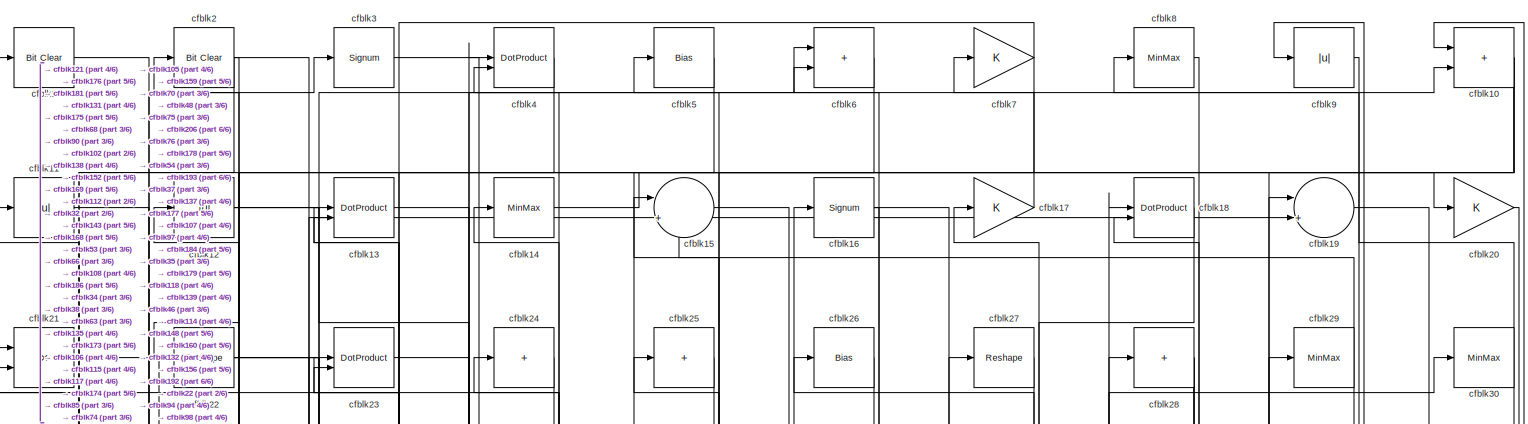
[diagram: root canvas - part 1/6, full width, top band]
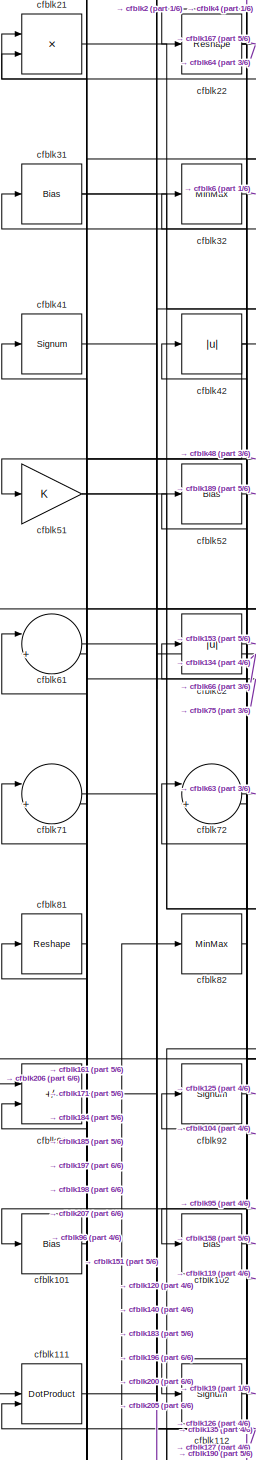
[diagram: root canvas - part 2/6, middle left region]
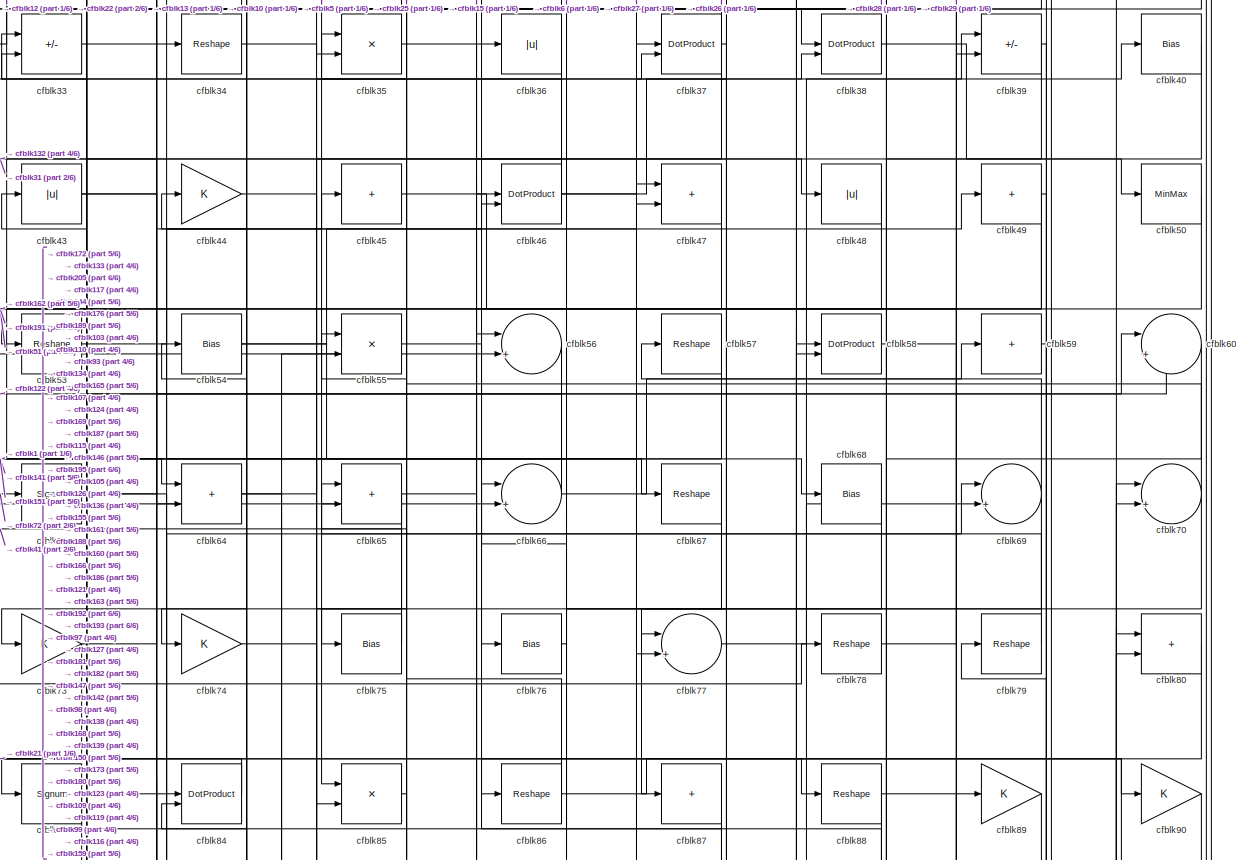
[diagram: root canvas - part 3/6, full width, top band]
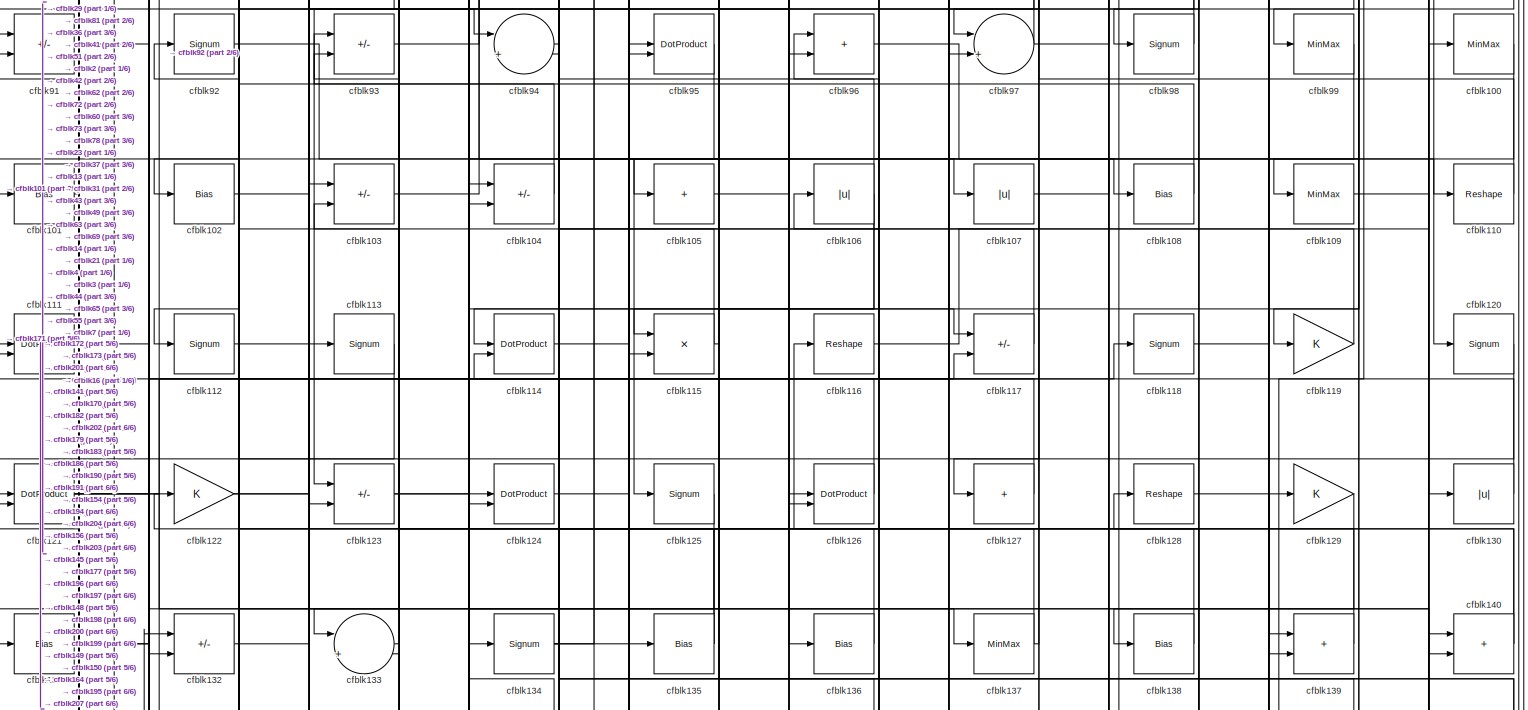
[diagram: root canvas - part 4/6, full width, middle band]
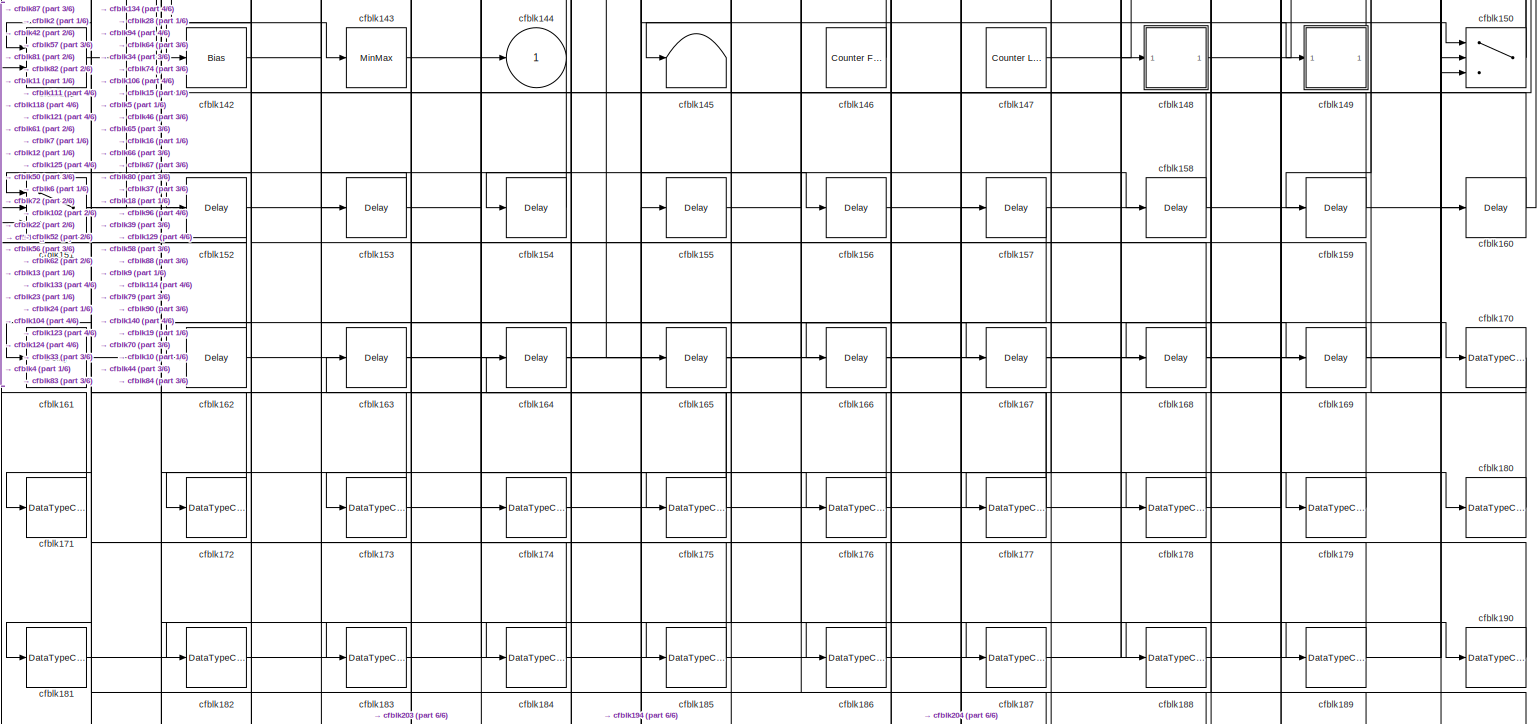
[diagram: root canvas - part 5/6, full width, bottom band]
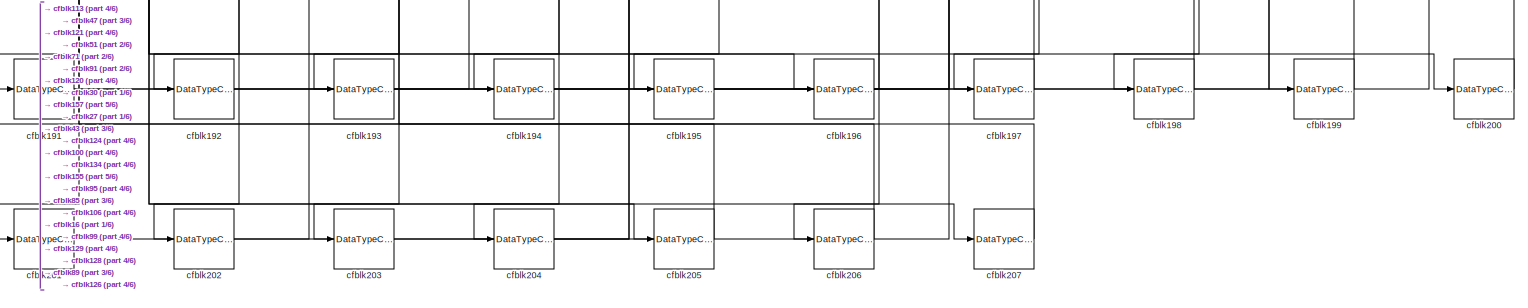
[diagram: root canvas - part 6/6, full width, bottom band]
MODEL slx_fe7b9c9af1c7
KIND model
CONFIG AbsTol = auto
CONFIG EnableMultiTasking = off
CONFIG FixedStep = auto
CONFIG MaxStep = auto
CONFIG MinStep = auto
CONFIG RelTol = 1e-3
CONFIG SampleTimeConstraint = Unconstrained
CONFIG SolverName = VariableStepAuto
CONFIG StartTime = 0.0
CONFIG StopTime = 10.0
BLOCK [Reference] cfblk1  REF=simulink/Logic and Bit
Operations/Bit Clear
  LibrarySourceBlock = hdlsllib/Logic and Bit\nOperations/Bit Clear
  SourceBlock = simulink/Logic and Bit\nOperations/Bit Clear
  SourceType = Bit Clear
BLOCK [Sum] cfblk10
  IconShape = rectangular
BLOCK [MinMax] cfblk100
BLOCK [Bias] cfblk101
  Bias = 0.0
  SaturateOnIntegerOverflow = off
BLOCK [Bias] cfblk102
  Bias = 0.0
  SaturateOnIntegerOverflow = off
BLOCK [Sum] cfblk103
  IconShape = rectangular
  Inputs = +-
BLOCK [Sum] cfblk104
  IconShape = rectangular
  Inputs = +-
BLOCK [Sum] cfblk105
  IconShape = rectangular
  Inputs = +
BLOCK [Abs] cfblk106
  SaturateOnIntegerOverflow = off
BLOCK [Abs] cfblk107
  SaturateOnIntegerOverflow = off
BLOCK [Bias] cfblk108
  Bias = 0.0
  SaturateOnIntegerOverflow = off
BLOCK [MinMax] cfblk109
BLOCK [Abs] cfblk11
  SaturateOnIntegerOverflow = off
BLOCK [Reshape] cfblk110
BLOCK [DotProduct] cfblk111
  OutDataTypeStr = Inherit: Inherit via internal rule
BLOCK [Signum] cfblk112
BLOCK [Signum] cfblk113
BLOCK [DotProduct] cfblk114
  OutDataTypeStr = Inherit: Inherit via internal rule
BLOCK [Product] cfblk115
  Inputs = */
  RndMeth = Zero
  SaturateOnIntegerOverflow = on
BLOCK [Reshape] cfblk116
BLOCK [Sum] cfblk117
  IconShape = rectangular
  Inputs = +-
BLOCK [Signum] cfblk118
BLOCK [Gain] cfblk119
BLOCK [Abs] cfblk12
  SaturateOnIntegerOverflow = off
BLOCK [Signum] cfblk120
BLOCK [DotProduct] cfblk121
  OutDataTypeStr = Inherit: Inherit via internal rule
BLOCK [Gain] cfblk122
BLOCK [Sum] cfblk123
  IconShape = rectangular
  Inputs = +-
BLOCK [DotProduct] cfblk124
  OutDataTypeStr = Inherit: Inherit via internal rule
BLOCK [Signum] cfblk125
BLOCK [DotProduct] cfblk126
  OutDataTypeStr = Inherit: Inherit via internal rule
BLOCK [Sum] cfblk127
  IconShape = rectangular
  Inputs = +
BLOCK [Reshape] cfblk128
BLOCK [Gain] cfblk129
BLOCK [DotProduct] cfblk13
  OutDataTypeStr = Inherit: Inherit via internal rule
BLOCK [Abs] cfblk130
  SaturateOnIntegerOverflow = off
BLOCK [Bias] cfblk131
  Bias = 0.0
  SaturateOnIntegerOverflow = off
BLOCK [Sum] cfblk132
  IconShape = rectangular
  Inputs = +-
BLOCK [Sum] cfblk133
  Inputs = |++
BLOCK [Signum] cfblk134
BLOCK [Bias] cfblk135
  Bias = 0.0
  SaturateOnIntegerOverflow = off
BLOCK [Bias] cfblk136
  Bias = 0.0
  SaturateOnIntegerOverflow = off
BLOCK [MinMax] cfblk137
BLOCK [Bias] cfblk138
  Bias = 0.0
  SaturateOnIntegerOverflow = off
BLOCK [Sum] cfblk139
  IconShape = rectangular
BLOCK [MinMax] cfblk14
BLOCK [Sum] cfblk140
  IconShape = rectangular
BLOCK [Product] cfblk141
  Inputs = */
  RndMeth = Zero
  SaturateOnIntegerOverflow = on
BLOCK [Bias] cfblk142
  Bias = 0.0
  SaturateOnIntegerOverflow = off
BLOCK [MinMax] cfblk143
BLOCK [Outport] cfblk144
  VectorParamsAs1DForOutWhenUnconnected = off
BLOCK [Terminator] cfblk145
BLOCK [Reference] cfblk146  REF=hdlsllib/Sources/Counter
Free-Running
  SourceBlock = hdlsllib/Sources/Counter\nFree-Running
  SourceType = Counter Free-Running
BLOCK [Reference] cfblk147  REF=hdlsllib/Sources/Counter
Limited
  SourceBlock = hdlsllib/Sources/Counter\nLimited
  SourceType = Counter Limited
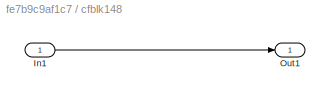
BLOCK [SubSystem] cfblk148
  LibrarySourceBlock = hdlsllib/Ports &\nSubsystems/Subsystem
BLOCK [Inport] cfblk148/In1
BLOCK [Outport] cfblk148/Out1
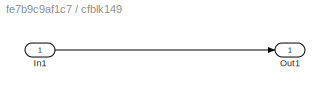
BLOCK [SubSystem] cfblk149
  LibrarySourceBlock = hdlsllib/Ports &\nSubsystems/Subsystem
BLOCK [Inport] cfblk149/In1
BLOCK [Outport] cfblk149/Out1
BLOCK [Sum] cfblk15
  Inputs = |++
BLOCK [Switch] cfblk150
  InputSameDT = off
  SaturateOnIntegerOverflow = off
BLOCK [Switch] cfblk151
  InputSameDT = off
  SaturateOnIntegerOverflow = off
BLOCK [Delay] cfblk152
  InputPortMap = u0
  SampleTime = 1
BLOCK [Delay] cfblk153
  InputPortMap = u0
  SampleTime = 1
BLOCK [Delay] cfblk154
  InputPortMap = u0
  SampleTime = 1
BLOCK [Delay] cfblk155
  InputPortMap = u0
  SampleTime = 1
BLOCK [Delay] cfblk156
  InputPortMap = u0
  SampleTime = 1
BLOCK [Delay] cfblk157
  InputPortMap = u0
  SampleTime = 1
BLOCK [Delay] cfblk158
  InputPortMap = u0
  SampleTime = 1
BLOCK [Delay] cfblk159
  InputPortMap = u0
  SampleTime = 1
BLOCK [Signum] cfblk16
BLOCK [Delay] cfblk160
  InputPortMap = u0
  SampleTime = 1
BLOCK [Delay] cfblk161
  InputPortMap = u0
  SampleTime = 1
BLOCK [Delay] cfblk162
  InputPortMap = u0
  SampleTime = 1
BLOCK [Delay] cfblk163
  InputPortMap = u0
  SampleTime = 1
BLOCK [Delay] cfblk164
  InputPortMap = u0
  SampleTime = 1
BLOCK [Delay] cfblk165
  InputPortMap = u0
  SampleTime = 1
BLOCK [Delay] cfblk166
  InputPortMap = u0
  SampleTime = 1
BLOCK [Delay] cfblk167
  InputPortMap = u0
  SampleTime = 1
BLOCK [Delay] cfblk168
  InputPortMap = u0
  SampleTime = 1
BLOCK [Delay] cfblk169
  InputPortMap = u0
  SampleTime = 1
BLOCK [Gain] cfblk17
BLOCK [DataTypeConversion] cfblk170
  OutDataTypeStr = uint8
  RndMeth = Floor
  SaturateOnIntegerOverflow = off
BLOCK [DataTypeConversion] cfblk171
  OutDataTypeStr = uint8
  RndMeth = Floor
  SaturateOnIntegerOverflow = off
BLOCK [DataTypeConversion] cfblk172
  OutDataTypeStr = uint8
  RndMeth = Floor
  SaturateOnIntegerOverflow = off
BLOCK [DataTypeConversion] cfblk173
  RndMeth = Floor
  SaturateOnIntegerOverflow = off
BLOCK [DataTypeConversion] cfblk174
  OutDataTypeStr = uint8
  RndMeth = Floor
  SaturateOnIntegerOverflow = off
BLOCK [DataTypeConversion] cfblk175
  RndMeth = Floor
  SaturateOnIntegerOverflow = off
BLOCK [DataTypeConversion] cfblk176
  OutDataTypeStr = uint8
  RndMeth = Floor
  SaturateOnIntegerOverflow = off
BLOCK [DataTypeConversion] cfblk177
  RndMeth = Floor
  SaturateOnIntegerOverflow = off
BLOCK [DataTypeConversion] cfblk178
  OutDataTypeStr = uint8
  RndMeth = Floor
  SaturateOnIntegerOverflow = off
BLOCK [DataTypeConversion] cfblk179
  OutDataTypeStr = uint8
  RndMeth = Floor
  SaturateOnIntegerOverflow = off
BLOCK [DotProduct] cfblk18
  OutDataTypeStr = Inherit: Inherit via internal rule
BLOCK [DataTypeConversion] cfblk180
  OutDataTypeStr = uint8
  RndMeth = Floor
  SaturateOnIntegerOverflow = off
BLOCK [DataTypeConversion] cfblk181
  OutDataTypeStr = uint8
  RndMeth = Floor
  SaturateOnIntegerOverflow = off
BLOCK [DataTypeConversion] cfblk182
  OutDataTypeStr = uint8
  RndMeth = Floor
  SaturateOnIntegerOverflow = off
BLOCK [DataTypeConversion] cfblk183
  OutDataTypeStr = uint8
  RndMeth = Floor
  SaturateOnIntegerOverflow = off
BLOCK [DataTypeConversion] cfblk184
  OutDataTypeStr = uint8
  RndMeth = Floor
  SaturateOnIntegerOverflow = off
BLOCK [DataTypeConversion] cfblk185
  OutDataTypeStr = uint8
  RndMeth = Floor
  SaturateOnIntegerOverflow = off
BLOCK [DataTypeConversion] cfblk186
  RndMeth = Floor
  SaturateOnIntegerOverflow = off
BLOCK [DataTypeConversion] cfblk187
  OutDataTypeStr = uint8
  RndMeth = Floor
  SaturateOnIntegerOverflow = off
BLOCK [DataTypeConversion] cfblk188
  OutDataTypeStr = uint8
  RndMeth = Floor
  SaturateOnIntegerOverflow = off
BLOCK [DataTypeConversion] cfblk189
  OutDataTypeStr = uint8
  RndMeth = Floor
  SaturateOnIntegerOverflow = off
BLOCK [Sum] cfblk19
  Inputs = |++
BLOCK [DataTypeConversion] cfblk190
  OutDataTypeStr = uint8
  RndMeth = Floor
  SaturateOnIntegerOverflow = off
BLOCK [DataTypeConversion] cfblk191
  RndMeth = Floor
  SaturateOnIntegerOverflow = off
BLOCK [DataTypeConversion] cfblk192
  OutDataTypeStr = uint8
  RndMeth = Floor
  SaturateOnIntegerOverflow = off
BLOCK [DataTypeConversion] cfblk193
  OutDataTypeStr = uint8
  RndMeth = Floor
  SaturateOnIntegerOverflow = off
BLOCK [DataTypeConversion] cfblk194
  OutDataTypeStr = uint8
  RndMeth = Floor
  SaturateOnIntegerOverflow = off
BLOCK [DataTypeConversion] cfblk195
  OutDataTypeStr = uint8
  RndMeth = Floor
  SaturateOnIntegerOverflow = off
BLOCK [DataTypeConversion] cfblk196
  OutDataTypeStr = uint8
  RndMeth = Floor
  SaturateOnIntegerOverflow = off
BLOCK [DataTypeConversion] cfblk197
  OutDataTypeStr = uint8
  RndMeth = Floor
  SaturateOnIntegerOverflow = off
BLOCK [DataTypeConversion] cfblk198
  OutDataTypeStr = uint8
  RndMeth = Floor
  SaturateOnIntegerOverflow = off
BLOCK [DataTypeConversion] cfblk199
  OutDataTypeStr = uint8
  RndMeth = Floor
  SaturateOnIntegerOverflow = off
BLOCK [Reference] cfblk2  REF=simulink/Logic and Bit
Operations/Bit Clear
  LibrarySourceBlock = hdlsllib/Logic and Bit\nOperations/Bit Clear
  SourceBlock = simulink/Logic and Bit\nOperations/Bit Clear
  SourceType = Bit Clear
BLOCK [Gain] cfblk20
BLOCK [DataTypeConversion] cfblk200
  OutDataTypeStr = uint8
  RndMeth = Floor
  SaturateOnIntegerOverflow = off
BLOCK [DataTypeConversion] cfblk201
  OutDataTypeStr = uint8
  RndMeth = Floor
  SaturateOnIntegerOverflow = off
BLOCK [DataTypeConversion] cfblk202
  OutDataTypeStr = uint8
  RndMeth = Floor
  SaturateOnIntegerOverflow = off
BLOCK [DataTypeConversion] cfblk203
  OutDataTypeStr = uint8
  RndMeth = Floor
  SaturateOnIntegerOverflow = off
BLOCK [DataTypeConversion] cfblk204
  OutDataTypeStr = uint8
  RndMeth = Floor
  SaturateOnIntegerOverflow = off
BLOCK [DataTypeConversion] cfblk205
  OutDataTypeStr = uint8
  RndMeth = Floor
  SaturateOnIntegerOverflow = off
BLOCK [DataTypeConversion] cfblk206
  OutDataTypeStr = uint8
  RndMeth = Floor
  SaturateOnIntegerOverflow = off
BLOCK [DataTypeConversion] cfblk207
  OutDataTypeStr = uint8
  RndMeth = Floor
  SaturateOnIntegerOverflow = off
BLOCK [Product] cfblk21
  Inputs = */
  RndMeth = Zero
  SaturateOnIntegerOverflow = on
BLOCK [Reshape] cfblk22
BLOCK [DotProduct] cfblk23
  OutDataTypeStr = Inherit: Inherit via internal rule
BLOCK [Sum] cfblk24
  IconShape = rectangular
  Inputs = +
BLOCK [Sum] cfblk25
  IconShape = rectangular
  Inputs = +
BLOCK [Bias] cfblk26
  Bias = 0.0
  SaturateOnIntegerOverflow = off
BLOCK [Reshape] cfblk27
BLOCK [Sum] cfblk28
  IconShape = rectangular
  Inputs = +
BLOCK [MinMax] cfblk29
BLOCK [Signum] cfblk3
BLOCK [MinMax] cfblk30
BLOCK [Bias] cfblk31
  Bias = 0.0
  SaturateOnIntegerOverflow = off
BLOCK [MinMax] cfblk32
BLOCK [Sum] cfblk33
  IconShape = rectangular
  Inputs = +-
BLOCK [Reshape] cfblk34
BLOCK [Product] cfblk35
  Inputs = */
  RndMeth = Zero
  SaturateOnIntegerOverflow = on
BLOCK [Abs] cfblk36
  SaturateOnIntegerOverflow = off
BLOCK [DotProduct] cfblk37
  OutDataTypeStr = Inherit: Inherit via internal rule
BLOCK [DotProduct] cfblk38
  OutDataTypeStr = Inherit: Inherit via internal rule
BLOCK [Sum] cfblk39
  IconShape = rectangular
  Inputs = +-
BLOCK [DotProduct] cfblk4
  OutDataTypeStr = Inherit: Inherit via internal rule
BLOCK [Bias] cfblk40
  Bias = 0.0
  SaturateOnIntegerOverflow = off
BLOCK [Signum] cfblk41
BLOCK [Abs] cfblk42
  SaturateOnIntegerOverflow = off
BLOCK [Abs] cfblk43
  SaturateOnIntegerOverflow = off
BLOCK [Gain] cfblk44
BLOCK [Sum] cfblk45
  IconShape = rectangular
  Inputs = +
BLOCK [DotProduct] cfblk46
  OutDataTypeStr = Inherit: Inherit via internal rule
BLOCK [Sum] cfblk47
  IconShape = rectangular
BLOCK [Abs] cfblk48
  SaturateOnIntegerOverflow = off
BLOCK [Sum] cfblk49
  IconShape = rectangular
  Inputs = +
BLOCK [Bias] cfblk5
  Bias = 0.0
  SaturateOnIntegerOverflow = off
BLOCK [MinMax] cfblk50
BLOCK [Gain] cfblk51
BLOCK [Bias] cfblk52
  Bias = 0.0
  SaturateOnIntegerOverflow = off
BLOCK [Reshape] cfblk53
BLOCK [Bias] cfblk54
  Bias = 0.0
  SaturateOnIntegerOverflow = off
BLOCK [Product] cfblk55
  Inputs = */
  RndMeth = Zero
  SaturateOnIntegerOverflow = on
BLOCK [Sum] cfblk56
  Inputs = |++
BLOCK [Reshape] cfblk57
BLOCK [DotProduct] cfblk58
  OutDataTypeStr = Inherit: Inherit via internal rule
BLOCK [Sum] cfblk59
  IconShape = rectangular
  Inputs = +
BLOCK [Sum] cfblk6
  IconShape = rectangular
BLOCK [Sum] cfblk60
  Inputs = |++
BLOCK [Sum] cfblk61
  Inputs = |++
BLOCK [Abs] cfblk62
  SaturateOnIntegerOverflow = off
BLOCK [Signum] cfblk63
BLOCK [Sum] cfblk64
  IconShape = rectangular
BLOCK [Sum] cfblk65
  IconShape = rectangular
BLOCK [Sum] cfblk66
  Inputs = |++
BLOCK [Reshape] cfblk67
BLOCK [Bias] cfblk68
  Bias = 0.0
  SaturateOnIntegerOverflow = off
BLOCK [Sum] cfblk69
  Inputs = |++
BLOCK [Gain] cfblk7
BLOCK [Sum] cfblk70
  Inputs = |++
BLOCK [Sum] cfblk71
  Inputs = |++
BLOCK [Sum] cfblk72
  Inputs = |++
BLOCK [Gain] cfblk73
BLOCK [Gain] cfblk74
BLOCK [Bias] cfblk75
  Bias = 0.0
  SaturateOnIntegerOverflow = off
BLOCK [Bias] cfblk76
  Bias = 0.0
  SaturateOnIntegerOverflow = off
BLOCK [Sum] cfblk77
  Inputs = |++
BLOCK [Reshape] cfblk78
BLOCK [Reshape] cfblk79
BLOCK [MinMax] cfblk8
BLOCK [Sum] cfblk80
  IconShape = rectangular
BLOCK [Reshape] cfblk81
BLOCK [MinMax] cfblk82
BLOCK [Signum] cfblk83
BLOCK [DotProduct] cfblk84
  OutDataTypeStr = Inherit: Inherit via internal rule
BLOCK [Product] cfblk85
  Inputs = */
  RndMeth = Zero
  SaturateOnIntegerOverflow = on
BLOCK [Reshape] cfblk86
BLOCK [Sum] cfblk87
  IconShape = rectangular
  Inputs = +
BLOCK [Reshape] cfblk88
BLOCK [Gain] cfblk89
BLOCK [Abs] cfblk9
  SaturateOnIntegerOverflow = off
BLOCK [Gain] cfblk90
BLOCK [Sum] cfblk91
  IconShape = rectangular
  Inputs = +-
BLOCK [Signum] cfblk92
BLOCK [Sum] cfblk93
  IconShape = rectangular
  Inputs = +-
BLOCK [Sum] cfblk94
  Inputs = |++
BLOCK [DotProduct] cfblk95
  OutDataTypeStr = Inherit: Inherit via internal rule
BLOCK [Sum] cfblk96
  IconShape = rectangular
BLOCK [Sum] cfblk97
  Inputs = |++
BLOCK [Signum] cfblk98
BLOCK [MinMax] cfblk99
LINE cfblk100:1 -> cfblk194:1
LINE cfblk101:1 -> cfblk31:1
LINE cfblk102:1 -> cfblk158:1
LINE cfblk103:1 -> cfblk49:1
LINE cfblk104:1 -> cfblk72:2
LINE cfblk105:1 -> cfblk36:1
NET cfblk106:1 -> cfblk115:1, cfblk145:1, cfblk21:1
LINE cfblk107:1 -> cfblk28:1
LINE cfblk108:1 -> cfblk93:1
LINE cfblk109:1 -> cfblk130:1
NET cfblk10:1 -> cfblk121:1, cfblk139:2, cfblk53:1
LINE cfblk110:1 -> cfblk33:1
LINE cfblk111:1 -> cfblk170:1
LINE cfblk112:1 -> cfblk19:2
LINE cfblk113:1 -> cfblk201:1
LINE cfblk114:1 -> cfblk156:1
NET cfblk115:1 -> cfblk4:2, cfblk55:1
LINE cfblk116:1 -> cfblk70:2
LINE cfblk117:1 -> cfblk14:1
LINE cfblk118:1 -> cfblk19:1
LINE cfblk119:1 -> cfblk42:1
LINE cfblk11:1 -> cfblk175:1
LINE cfblk120:1 -> cfblk202:1
NET cfblk121:1 -> cfblk150:2, cfblk207:1, cfblk77:2
NET cfblk122:1 -> cfblk103:1, cfblk60:2
NET cfblk123:1 -> cfblk179:1, cfblk190:1
LINE cfblk124:1 -> cfblk37:2
LINE cfblk125:1 -> cfblk182:1
LINE cfblk126:1 -> cfblk81:1
LINE cfblk127:1 -> cfblk92:1
LINE cfblk128:1 -> cfblk199:1
LINE cfblk129:1 -> cfblk198:1
NET cfblk12:1 -> cfblk34:1, cfblk38:1
LINE cfblk130:1 -> cfblk96:1
NET cfblk131:1 -> cfblk117:2, cfblk3:1
LINE cfblk132:1 -> cfblk78:1
LINE cfblk133:1 -> cfblk103:2
NET cfblk134:1 -> cfblk149:1, cfblk204:1, cfblk55:2
NET cfblk135:1 -> cfblk62:1, cfblk94:2
LINE cfblk136:1 -> cfblk54:1
NET cfblk137:1 -> cfblk122:1, cfblk17:1
LINE cfblk138:1 -> cfblk2:1
LINE cfblk139:1 -> cfblk23:1
LINE cfblk13:1 -> cfblk108:1
NET cfblk140:1 -> cfblk116:1, cfblk93:2
LINE cfblk141:1 -> cfblk118:1
LINE cfblk142:1 -> cfblk56:2
LINE cfblk143:1 -> cfblk174:1
LINE cfblk146:1 -> cfblk65:1
LINE cfblk147:1 -> cfblk39:1
LINE cfblk148/In1:1 -> cfblk148/Out1:1
LINE cfblk148:1 -> cfblk9:1
LINE cfblk149/In1:1 -> cfblk149/Out1:1
LINE cfblk149:1 -> cfblk114:2
LINE cfblk14:1 -> cfblk20:1
NET cfblk150:1 -> cfblk44:1, cfblk84:2
NET cfblk151:1 -> cfblk104:2, cfblk82:1
LINE cfblk152:1 -> cfblk1:1
LINE cfblk153:1 -> cfblk151:1
LINE cfblk154:1 -> cfblk104:1
LINE cfblk155:1 -> cfblk56:1
LINE cfblk156:1 -> cfblk10:1
LINE cfblk157:1 -> cfblk203:1
LINE cfblk158:1 -> cfblk72:1
LINE cfblk159:1 -> cfblk15:1
LINE cfblk15:1 -> cfblk48:1
LINE cfblk160:1 -> cfblk66:1
LINE cfblk161:1 -> cfblk46:1
LINE cfblk162:1 -> cfblk151:2
LINE cfblk163:1 -> cfblk37:1
LINE cfblk164:1 -> cfblk140:1
LINE cfblk165:1 -> cfblk185:1
LINE cfblk166:1 -> cfblk70:1
LINE cfblk167:1 -> cfblk150:3
LINE cfblk168:1 -> cfblk23:2
LINE cfblk169:1 -> cfblk12:1
NET cfblk16:1 -> cfblk178:1, cfblk206:1
LINE cfblk170:1 -> cfblk164:1
LINE cfblk171:1 -> cfblk111:1
LINE cfblk172:1 -> cfblk111:2
NET cfblk173:1 -> cfblk121:2, cfblk39:2
LINE cfblk174:1 -> cfblk24:1
NET cfblk175:1 -> cfblk13:2, cfblk163:1
LINE cfblk176:1 -> cfblk11:1
NET cfblk177:1 -> cfblk133:2, cfblk5:1
LINE cfblk178:1 -> cfblk18:1
LINE cfblk179:1 -> cfblk18:2
LINE cfblk17:1 -> cfblk7:1
LINE cfblk180:1 -> cfblk79:1
LINE cfblk181:1 -> cfblk58:1
LINE cfblk182:1 -> cfblk58:2
LINE cfblk183:1 -> cfblk124:1
LINE cfblk184:1 -> cfblk61:1
LINE cfblk185:1 -> cfblk61:2
NET cfblk186:1 -> cfblk129:1, cfblk4:1
LINE cfblk187:1 -> cfblk80:1
LINE cfblk188:1 -> cfblk80:2
LINE cfblk189:1 -> cfblk84:1
LINE cfblk18:1 -> cfblk177:1
LINE cfblk190:1 -> cfblk52:1
NET cfblk191:1 -> cfblk124:2, cfblk89:1
LINE cfblk192:1 -> cfblk47:1
LINE cfblk193:1 -> cfblk47:2
LINE cfblk194:1 -> cfblk155:1
LINE cfblk195:1 -> cfblk100:1
LINE cfblk196:1 -> cfblk106:1
LINE cfblk197:1 -> cfblk71:1
LINE cfblk198:1 -> cfblk71:2
LINE cfblk199:1 -> cfblk126:1
LINE cfblk19:1 -> cfblk160:1
LINE cfblk1:1 -> cfblk68:1
LINE cfblk200:1 -> cfblk128:1
LINE cfblk201:1 -> cfblk95:1
LINE cfblk202:1 -> cfblk113:1
LINE cfblk203:1 -> cfblk95:2
LINE cfblk204:1 -> cfblk157:1
LINE cfblk205:1 -> cfblk43:1
LINE cfblk206:1 -> cfblk91:1
LINE cfblk207:1 -> cfblk91:2
LINE cfblk20:1 -> cfblk132:1
LINE cfblk21:1 -> cfblk90:1
NET cfblk22:1 -> cfblk167:1, cfblk64:1, cfblk64:2
LINE cfblk23:1 -> cfblk137:1
LINE cfblk24:1 -> cfblk173:1
LINE cfblk25:1 -> cfblk74:1
LINE cfblk26:1 -> cfblk75:1
LINE cfblk27:1 -> cfblk193:1
NET cfblk28:1 -> cfblk184:1, cfblk35:2, cfblk97:1
NET cfblk29:1 -> cfblk131:1, cfblk15:2
NET cfblk2:1 -> cfblk181:1, cfblk22:1, cfblk94:1
NET cfblk30:1 -> cfblk192:1, cfblk8:1
NET cfblk31:1 -> cfblk134:1, cfblk66:2
LINE cfblk32:1 -> cfblk6:2
LINE cfblk33:1 -> cfblk144:1
LINE cfblk34:1 -> cfblk169:1
LINE cfblk35:1 -> cfblk136:1
LINE cfblk36:1 -> cfblk132:2
NET cfblk37:1 -> cfblk133:1, cfblk26:1, cfblk77:1
LINE cfblk38:1 -> cfblk50:1
NET cfblk39:1 -> cfblk119:1, cfblk168:1
LINE cfblk3:1 -> cfblk135:1
LINE cfblk40:1 -> cfblk85:2
LINE cfblk41:1 -> cfblk140:2
NET cfblk42:1 -> cfblk112:1, cfblk171:1, cfblk96:2
NET cfblk43:1 -> cfblk117:1, cfblk46:2
LINE cfblk44:1 -> cfblk107:1
LINE cfblk45:1 -> cfblk139:1
NET cfblk46:1 -> cfblk21:2, cfblk29:1, cfblk38:2
LINE cfblk47:1 -> cfblk191:1
LINE cfblk48:1 -> cfblk51:1
NET cfblk49:1 -> cfblk109:1, cfblk126:2, cfblk127:1
LINE cfblk4:1 -> cfblk102:1
LINE cfblk50:1 -> cfblk162:1
NET cfblk51:1 -> cfblk120:1, cfblk200:1
LINE cfblk52:1 -> cfblk189:1
LINE cfblk53:1 -> cfblk45:1
NET cfblk54:1 -> cfblk27:1, cfblk97:2
LINE cfblk55:1 -> cfblk76:1
LINE cfblk56:1 -> cfblk151:3
LINE cfblk57:1 -> cfblk141:1
LINE cfblk58:1 -> cfblk180:1
LINE cfblk59:1 -> cfblk99:1
LINE cfblk5:1 -> cfblk85:1
LINE cfblk60:1 -> cfblk138:1
LINE cfblk61:1 -> cfblk183:1
LINE cfblk62:1 -> cfblk153:1
NET cfblk63:1 -> cfblk10:2, cfblk110:1
NET cfblk64:1 -> cfblk165:1, cfblk67:1
NET cfblk65:1 -> cfblk115:2, cfblk188:1
NET cfblk66:1 -> cfblk13:1, cfblk59:1
LINE cfblk67:1 -> cfblk166:1
LINE cfblk68:1 -> cfblk86:1
NET cfblk69:1 -> cfblk57:1, cfblk87:1
LINE cfblk6:1 -> cfblk152:1
NET cfblk70:1 -> cfblk25:1, cfblk73:1
LINE cfblk71:1 -> cfblk196:1
LINE cfblk72:1 -> cfblk63:1
NET cfblk73:1 -> cfblk123:2, cfblk60:1
LINE cfblk74:1 -> cfblk187:1
LINE cfblk75:1 -> cfblk41:1
LINE cfblk76:1 -> cfblk6:1
LINE cfblk77:1 -> cfblk69:2
LINE cfblk78:1 -> cfblk40:1
LINE cfblk79:1 -> cfblk65:2
NET cfblk7:1 -> cfblk105:1, cfblk143:1
LINE cfblk80:1 -> cfblk186:1
LINE cfblk81:1 -> cfblk161:1
LINE cfblk82:1 -> cfblk32:1
NET cfblk83:1 -> cfblk172:1, cfblk176:1
LINE cfblk84:1 -> cfblk83:1
LINE cfblk85:1 -> cfblk195:1
NET cfblk86:1 -> cfblk35:1, cfblk88:1
LINE cfblk87:1 -> cfblk141:2
NET cfblk88:1 -> cfblk142:1, cfblk150:1
LINE cfblk89:1 -> cfblk123:1
LINE cfblk8:1 -> cfblk98:1
LINE cfblk90:1 -> cfblk159:1
LINE cfblk91:1 -> cfblk205:1
LINE cfblk92:1 -> cfblk125:1
LINE cfblk93:1 -> cfblk69:1
LINE cfblk94:1 -> cfblk154:1
LINE cfblk95:1 -> cfblk101:1
LINE cfblk96:1 -> cfblk148:1
NET cfblk97:1 -> cfblk16:1, cfblk30:1
LINE cfblk98:1 -> cfblk33:2
LINE cfblk99:1 -> cfblk197:1
LINE cfblk9:1 -> cfblk114:1
note: NET lines group one-source signal fan-out (src -> all destinations, sorted); 1:1 wires keep LINE
